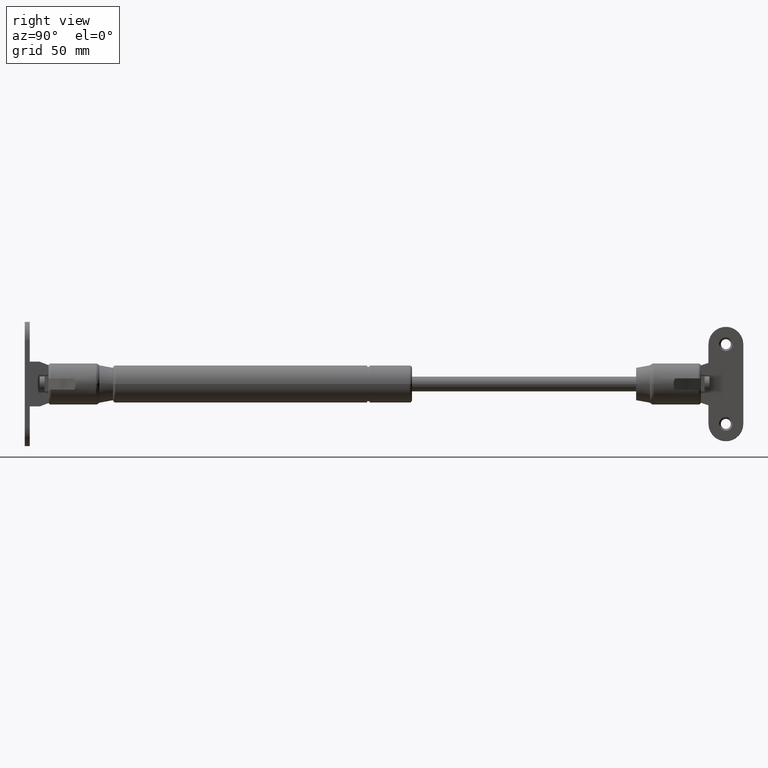
[diagram: clean part render]
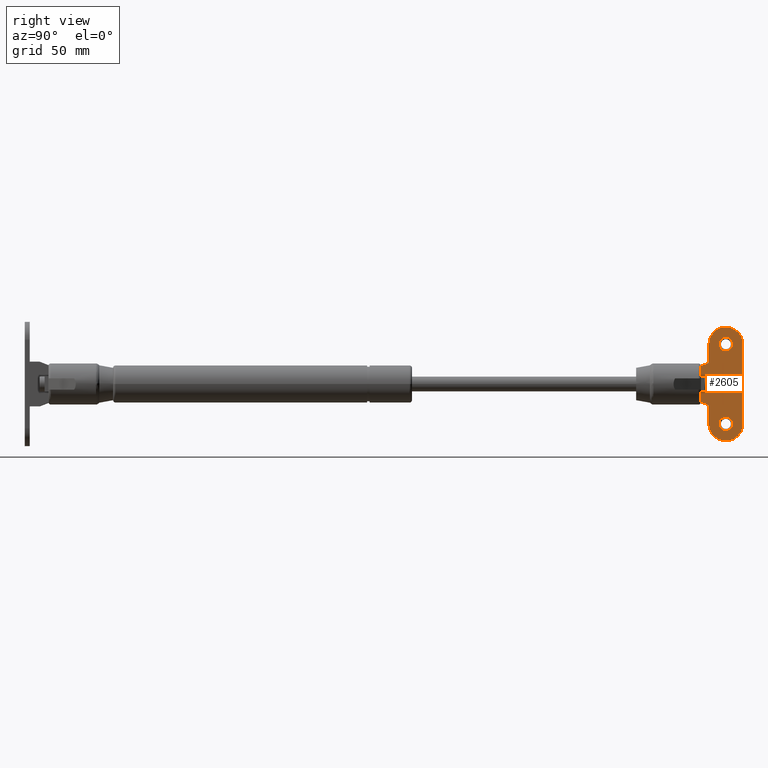
[diagram: same view with one face highlighted and labeled with its STEP entity id]
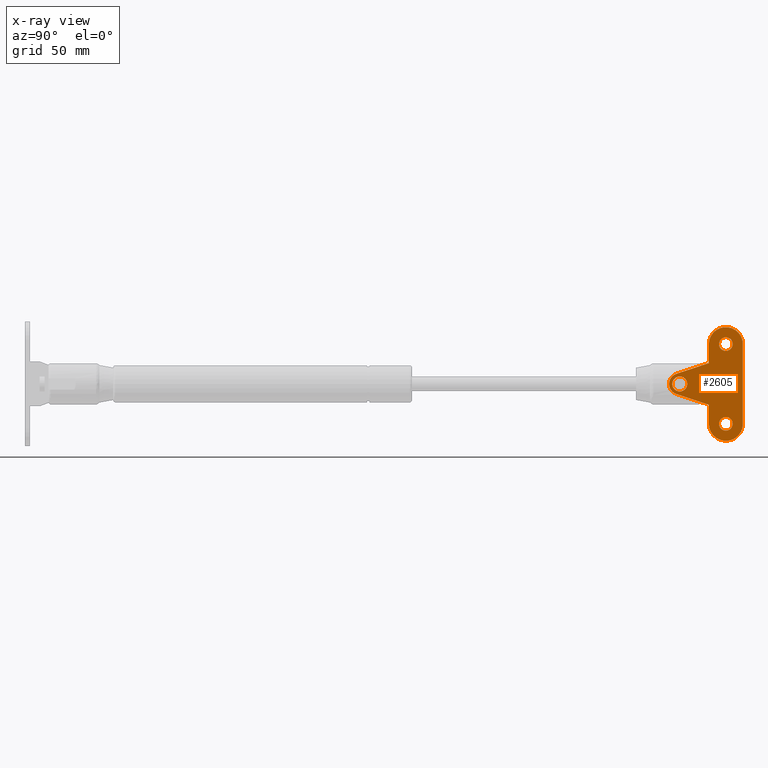
[diagram: x-ray of the same camera — body ghosted, the highlighted face saturated]
A machine part, right view. The second image highlights one B-rep face of the part: STEP entity #2605.
The next image is the same camera in x-ray: the body ghosted, the highlighted face saturated — about 0% of this face is hidden behind the body in this view.
In plain terms, the highlighted planar face has unit normal (-1, 0, -0).
Its self-contained STEP definition (entity closure, byte-faithful):
#152=FACE_BOUND('',#564,.T.);
#153=FACE_BOUND('',#565,.T.);
#154=FACE_BOUND('',#566,.T.);
#231=PLANE('',#2875);
#380=FACE_OUTER_BOUND('',#563,.T.);
#563=EDGE_LOOP('',(#2341,#2342,#2343,#2344,#2345,#2346,#2347,#2348));
#564=EDGE_LOOP('',(#2349));
#565=EDGE_LOOP('',(#2350));
#566=EDGE_LOOP('',(#2351));
#785=LINE('',#5003,#966);
#786=LINE('',#5011,#967);
#788=LINE('',#5018,#969);
#789=LINE('',#5029,#970);
#791=LINE('',#5037,#972);
#966=VECTOR('',#3538,13.7188397307982);
#967=VECTOR('',#3549,13.7188397307982);
#969=VECTOR('',#3557,7.64496777029995);
#970=VECTOR('',#3570,32.);
#972=VECTOR('',#3582,7.64496777029996);
#1078=CIRCLE('',#2858,4.3);
#1081=CIRCLE('',#2865,6.8);
#1085=CIRCLE('',#2871,6.8);
#1087=CIRCLE('',#2876,2.75);
#1088=CIRCLE('',#2877,2.75);
#1089=CIRCLE('',#2878,3.);
#1308=VERTEX_POINT('',#5000);
#1309=VERTEX_POINT('',#5002);
#1310=VERTEX_POINT('',#5006);
#1311=VERTEX_POINT('',#5010);
#1313=VERTEX_POINT('',#5016);
#1315=VERTEX_POINT('',#5021);
#1317=VERTEX_POINT('',#5027);
#1318=VERTEX_POINT('',#5032);
#1319=VERTEX_POINT('',#5041);
#1320=VERTEX_POINT('',#5043);
#1321=VERTEX_POINT('',#5045);
#1653=EDGE_CURVE('',#1308,#1309,#785,.T.);
#1656=EDGE_CURVE('',#1310,#1308,#1078,.T.);
#1657=EDGE_CURVE('',#1311,#1310,#786,.T.);
#1661=EDGE_CURVE('',#1313,#1311,#788,.T.);
#1663=EDGE_CURVE('',#1315,#1313,#1081,.T.);
#1666=EDGE_CURVE('',#1317,#1315,#789,.T.);
#1669=EDGE_CURVE('',#1318,#1317,#1085,.T.);
#1671=EDGE_CURVE('',#1309,#1318,#791,.T.);
#1673=EDGE_CURVE('',#1319,#1319,#1087,.T.);
#1674=EDGE_CURVE('',#1320,#1320,#1088,.T.);
#1675=EDGE_CURVE('',#1321,#1321,#1089,.T.);
#2341=ORIENTED_EDGE('',*,*,#1653,.F.);
#2342=ORIENTED_EDGE('',*,*,#1656,.F.);
#2343=ORIENTED_EDGE('',*,*,#1657,.F.);
#2344=ORIENTED_EDGE('',*,*,#1661,.F.);
#2345=ORIENTED_EDGE('',*,*,#1663,.F.);
#2346=ORIENTED_EDGE('',*,*,#1666,.F.);
#2347=ORIENTED_EDGE('',*,*,#1669,.F.);
#2348=ORIENTED_EDGE('',*,*,#1671,.F.);
#2349=ORIENTED_EDGE('',*,*,#1673,.T.);
#2350=ORIENTED_EDGE('',*,*,#1674,.T.);
#2351=ORIENTED_EDGE('',*,*,#1675,.T.);
#2605=ADVANCED_FACE('',(#380,#152,#153,#154),#231,.F.);
#2858=AXIS2_PLACEMENT_3D('',#5008,#3545,#3546);
#2865=AXIS2_PLACEMENT_3D('',#5023,#3562,#3563);
#2871=AXIS2_PLACEMENT_3D('',#5034,#3576,#3577);
#2875=AXIS2_PLACEMENT_3D('',#5040,#3586,#3587);
#2876=AXIS2_PLACEMENT_3D('',#5042,#3588,#3589);
#2877=AXIS2_PLACEMENT_3D('',#5044,#3590,#3591);
#2878=AXIS2_PLACEMENT_3D('',#5046,#3592,#3593);
#3538=DIRECTION('',(0.950364437876429,0.,-0.311138932343447));
#3545=DIRECTION('center_axis',(0.,-1.,0.));
#3546=DIRECTION('ref_axis',(-1.,0.,-4.93432455388958E-16));
#3549=DIRECTION('',(-0.950364437876428,0.,-0.311138932343448));
#3557=DIRECTION('',(8.88178419700126E-16,0.,-1.));
#3562=DIRECTION('center_axis',(0.,-1.,0.));
#3563=DIRECTION('ref_axis',(6.34413156928661E-16,0.,1.));
#3570=DIRECTION('',(1.38777878078145E-16,0.,1.));
#3576=DIRECTION('center_axis',(0.,-1.,0.));
#3577=DIRECTION('ref_axis',(3.1720657846433E-16,0.,-1.));
#3582=DIRECTION('',(-1.48029736616687E-15,0.,-1.));
#3586=DIRECTION('center_axis',(0.,-1.,0.));
#3587=DIRECTION('ref_axis',(0.,0.,-1.));
#3588=DIRECTION('center_axis',(0.,-1.,0.));
#3589=DIRECTION('ref_axis',(-1.,0.,0.));
#3590=DIRECTION('center_axis',(0.,-1.,0.));
#3591=DIRECTION('ref_axis',(-1.,0.,0.));
#3592=DIRECTION('center_axis',(0.,-1.,0.));
#3593=DIRECTION('ref_axis',(-1.,0.,0.));
#5000=CARTESIAN_POINT('',(-1.33789740907682,0.,-4.08656708286864));
#5002=CARTESIAN_POINT('',(11.7,0.,-8.35503222970005));
#5003=CARTESIAN_POINT('',(5.33039959983609,0.,-6.26969465920998));
#5006=CARTESIAN_POINT('',(-1.33789740907683,0.,4.08656708286864));
#5008=CARTESIAN_POINT('Origin',(0.,0.,0.));
#5010=CARTESIAN_POINT('',(11.7,0.,8.35503222970006));
#5011=CARTESIAN_POINT('',(11.7804621976088,0.,8.38137467398802));
#5016=CARTESIAN_POINT('',(11.7,0.,16.));
#5018=CARTESIAN_POINT('',(11.7,0.,8.));
#5021=CARTESIAN_POINT('',(25.3,0.,16.));
#5023=CARTESIAN_POINT('Origin',(18.5,0.,16.));
#5027=CARTESIAN_POINT('',(25.3,0.,-16.));
#5029=CARTESIAN_POINT('',(25.3,0.,-8.));
#5032=CARTESIAN_POINT('',(11.7,0.,-16.));
#5034=CARTESIAN_POINT('Origin',(18.5,0.,-16.));
#5037=CARTESIAN_POINT('',(11.7,0.,-4.25));
#5040=CARTESIAN_POINT('Origin',(14.7660582448126,0.,-1.72869553125405E-15));
#5041=CARTESIAN_POINT('',(15.75,0.,-16.));
#5042=CARTESIAN_POINT('Origin',(18.5,0.,-16.));
#5043=CARTESIAN_POINT('',(15.75,0.,16.));
#5044=CARTESIAN_POINT('Origin',(18.5,0.,16.));
#5045=CARTESIAN_POINT('',(3.,0.,3.67394039744206E-16));
#5046=CARTESIAN_POINT('Origin',(0.,0.,0.));